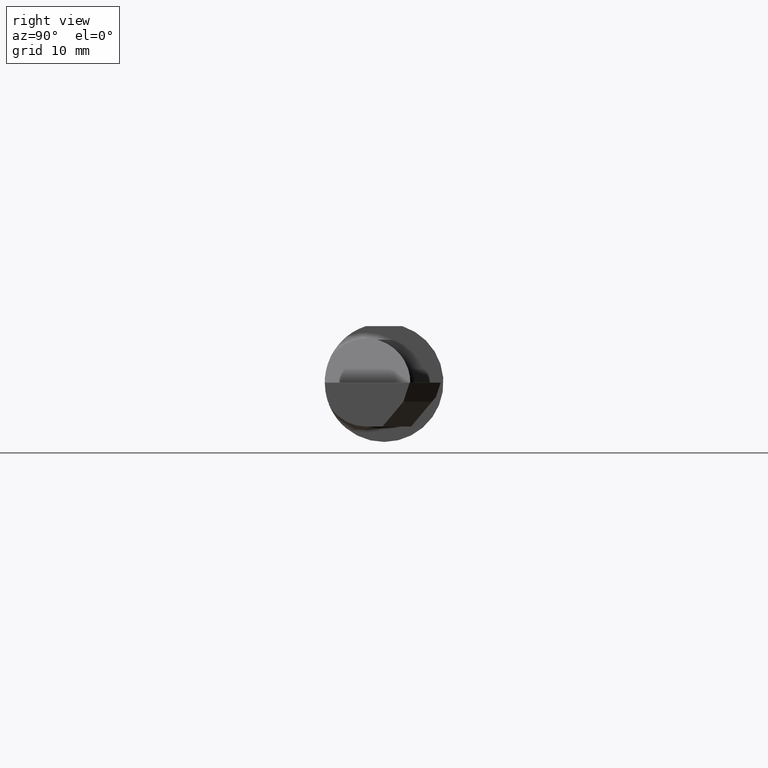
[diagram: clean part render]
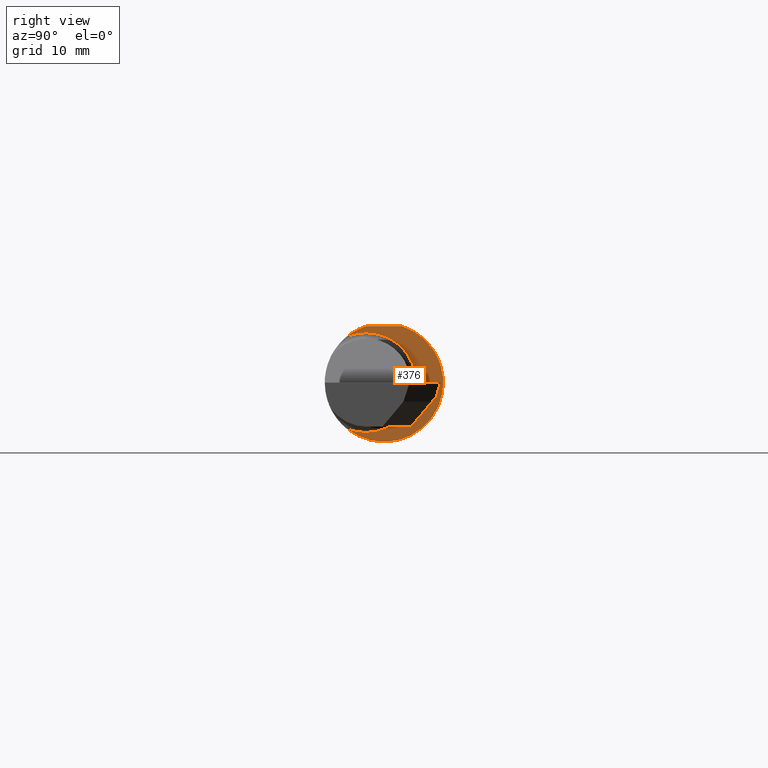
[diagram: same view with one face highlighted and labeled with its STEP entity id]
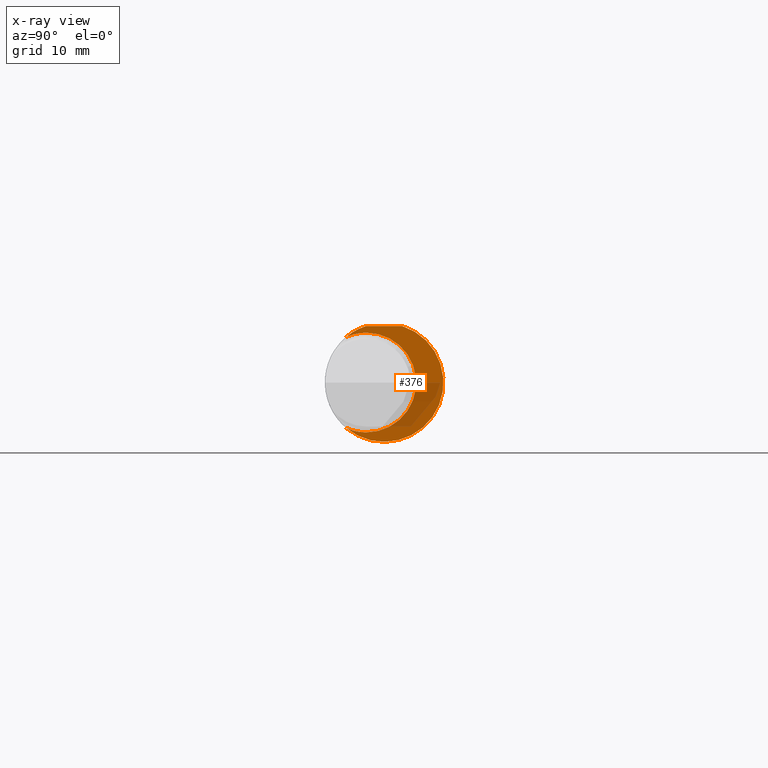
[diagram: x-ray of the same camera — body ghosted, the highlighted face saturated]
A machine part, right view. The second image highlights one B-rep face of the part: STEP entity #376.
The next image is the same camera in x-ray: the body ghosted, the highlighted face saturated — about 23% of this face is hidden behind the body in this view.
In plain terms, the highlighted planar face has unit normal (1, 0, 0).
Its self-contained STEP definition (entity closure, byte-faithful):
#14 = CIRCLE ( 'NONE', #904, 0.2100000000000000755 ) ;
#60 = DIRECTION ( 'NONE',  ( 0.000000000000000000, 1.000000000000000000, 0.000000000000000000 ) ) ;
#83 = DIRECTION ( 'NONE',  ( 0.000000000000000000, 0.000000000000000000, 1.000000000000000000 ) ) ;
#90 = ORIENTED_EDGE ( 'NONE', *, *, #642, .T. ) ;
#91 = CARTESIAN_POINT ( 'NONE',  ( 2.120000000000000551, -0.07485000000000024967, 0.2100000000000000755 ) ) ;
#103 = PLANE ( 'NONE',  #343 ) ;
#123 = VERTEX_POINT ( 'NONE', #146 ) ;
#146 = CARTESIAN_POINT ( 'NONE',  ( 2.120000000000000551, -0.07485000000000022191, -0.2100000000000000755 ) ) ;
#151 = EDGE_CURVE ( 'NONE', #484, #820, #634, .T. ) ;
#159 = DIRECTION ( 'NONE',  ( 0.000000000000000000, 0.000000000000000000, 1.000000000000000000 ) ) ;
#187 = AXIS2_PLACEMENT_3D ( 'NONE', #574, #445, #83 ) ;
#195 = CARTESIAN_POINT ( 'NONE',  ( 2.120000000000000551, -0.07485000000000026354, 0.000000000000000000 ) ) ;
#198 = EDGE_LOOP ( 'NONE', ( #90, #675, #556, #551, #768, #397 ) ) ;
#207 = CARTESIAN_POINT ( 'NONE',  ( 2.120000000000000551, 0.000000000000000000, 0.000000000000000000 ) ) ;
#280 = VERTEX_POINT ( 'NONE', #380 ) ;
#286 = CARTESIAN_POINT ( 'NONE',  ( 2.120000000000000551, 0.000000000000000000, 0.000000000000000000 ) ) ;
#291 = CARTESIAN_POINT ( 'NONE',  ( 2.120000000000000551, -0.07650098038587548055, 0.2378499999999998671 ) ) ;
#340 = LINE ( 'NONE', #482, #391 ) ;
#343 = AXIS2_PLACEMENT_3D ( 'NONE', #398, #481, #408 ) ;
#352 = CIRCLE ( 'NONE', #596, 0.2498499999999999888 ) ;
#372 = CARTESIAN_POINT ( 'NONE',  ( 2.120000000000000551, -0.07485000000000026354, 0.000000000000000000 ) ) ;
#376 = ADVANCED_FACE ( 'NONE', ( #547 ), #103, .T. ) ;
#380 = CARTESIAN_POINT ( 'NONE',  ( 2.120000000000000551, -0.1598366399465592502, -0.1920345568656693092 ) ) ;
#391 = VECTOR ( 'NONE', #60, 39.37007874015748143 ) ;
#397 = ORIENTED_EDGE ( 'NONE', *, *, #452, .T. ) ;
#398 = CARTESIAN_POINT ( 'NONE',  ( 2.120000000000000551, 0.2498499999999999055, 0.000000000000000000 ) ) ;
#408 = DIRECTION ( 'NONE',  ( 0.000000000000000000, 0.000000000000000000, -1.000000000000000000 ) ) ;
#432 = EDGE_CURVE ( 'NONE', #538, #681, #340, .T. ) ;
#439 = DIRECTION ( 'NONE',  ( 1.000000000000000000, 0.000000000000000000, 0.000000000000000000 ) ) ;
#445 = DIRECTION ( 'NONE',  ( -1.000000000000000000, -0.000000000000000000, -0.000000000000000000 ) ) ;
#452 = EDGE_CURVE ( 'NONE', #123, #280, #14, .T. ) ;
#481 = DIRECTION ( 'NONE',  ( 1.000000000000000000, 0.000000000000000000, 0.000000000000000000 ) ) ;
#482 = CARTESIAN_POINT ( 'NONE',  ( 2.120000000000000551, 0.2498499999999998500, 0.2378499999999998671 ) ) ;
#484 = VERTEX_POINT ( 'NONE', #767 ) ;
#525 = DIRECTION ( 'NONE',  ( -1.000000000000000000, -0.000000000000000000, -0.000000000000000000 ) ) ;
#538 = VERTEX_POINT ( 'NONE', #291 ) ;
#547 = FACE_OUTER_BOUND ( 'NONE', #198, .T. ) ;
#551 = ORIENTED_EDGE ( 'NONE', *, *, #151, .T. ) ;
#556 = ORIENTED_EDGE ( 'NONE', *, *, #627, .T. ) ;
#572 = DIRECTION ( 'NONE',  ( 0.000000000000000000, 0.000000000000000000, -1.000000000000000000 ) ) ;
#574 = CARTESIAN_POINT ( 'NONE',  ( 2.120000000000000551, -0.07485000000000026354, 0.000000000000000000 ) ) ;
#593 = AXIS2_PLACEMENT_3D ( 'NONE', #372, #525, #159 ) ;
#596 = AXIS2_PLACEMENT_3D ( 'NONE', #207, #439, #651 ) ;
#627 = EDGE_CURVE ( 'NONE', #538, #484, #352, .T. ) ;
#634 = CIRCLE ( 'NONE', #593, 0.2100000000000000755 ) ;
#636 = CIRCLE ( 'NONE', #799, 0.2498499999999999888 ) ;
#642 = EDGE_CURVE ( 'NONE', #280, #681, #636, .T. ) ;
#651 = DIRECTION ( 'NONE',  ( 0.000000000000000000, 0.000000000000000000, -1.000000000000000000 ) ) ;
#675 = ORIENTED_EDGE ( 'NONE', *, *, #432, .F. ) ;
#681 = VERTEX_POINT ( 'NONE', #849 ) ;
#705 = DIRECTION ( 'NONE',  ( 1.000000000000000000, 0.000000000000000000, 0.000000000000000000 ) ) ;
#710 = CIRCLE ( 'NONE', #187, 0.2100000000000000755 ) ;
#713 = EDGE_CURVE ( 'NONE', #820, #123, #710, .T. ) ;
#758 = DIRECTION ( 'NONE',  ( -1.000000000000000000, -0.000000000000000000, -0.000000000000000000 ) ) ;
#767 = CARTESIAN_POINT ( 'NONE',  ( 2.120000000000000551, -0.1598366399465592502, 0.1920345568656693092 ) ) ;
#768 = ORIENTED_EDGE ( 'NONE', *, *, #713, .T. ) ;
#799 = AXIS2_PLACEMENT_3D ( 'NONE', #286, #705, #572 ) ;
#820 = VERTEX_POINT ( 'NONE', #91 ) ;
#837 = DIRECTION ( 'NONE',  ( 0.000000000000000000, 0.000000000000000000, 1.000000000000000000 ) ) ;
#849 = CARTESIAN_POINT ( 'NONE',  ( 2.120000000000000551, 0.07650098038587520299, 0.2378499999999998671 ) ) ;
#904 = AXIS2_PLACEMENT_3D ( 'NONE', #195, #758, #837 ) ;